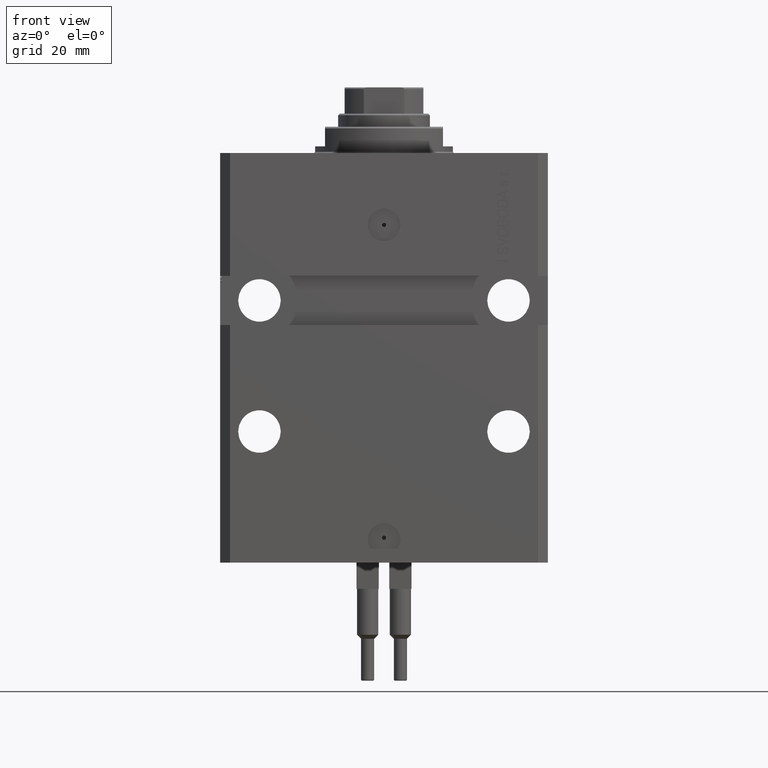
[diagram: clean part render]
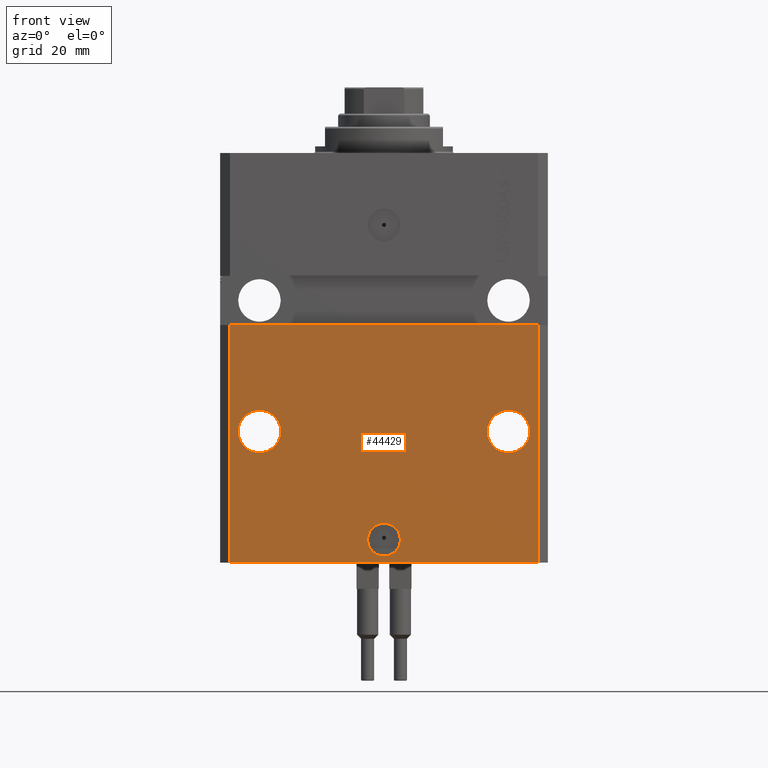
[diagram: same view with one face highlighted and labeled with its STEP entity id]
A machine part, front view. The second image highlights one B-rep face of the part: STEP entity #44429.
In plain terms, the highlighted planar face has unit normal (-0, -1, 0).
Its self-contained STEP definition (entity closure, byte-faithful):
#963 = DIRECTION ( 'NONE',  ( 1.176083712526788232E-16, -1.000000000000000000, 0.000000000000000000 ) ) ;
#1636 = CARTESIAN_POINT ( 'NONE',  ( -44.50000000000002842, -37.50000000000000711, -84.99999999999998579 ) ) ;
#2238 = CARTESIAN_POINT ( 'NONE',  ( 38.00000000000001421, -37.49999999999999289, -84.99999999999998579 ) ) ;
#3449 = CIRCLE ( 'NONE', #20900, 5.000000000000006217 ) ;
#4096 = VERTEX_POINT ( 'NONE', #22849 ) ;
#4556 = EDGE_CURVE ( 'NONE', #11833, #5690, #3449, .T. ) ;
#4684 = CARTESIAN_POINT ( 'NONE',  ( 38.00000000000001421, -37.49999999999999289, -84.99999999999998579 ) ) ;
#4815 = CIRCLE ( 'NONE', #32529, 6.499999999999999112 ) ;
#5073 = CARTESIAN_POINT ( 'NONE',  ( 44.50000000000001421, -37.49999999999999289, -84.99999999999998579 ) ) ;
#5690 = VERTEX_POINT ( 'NONE', #43741 ) ;
#6437 = AXIS2_PLACEMENT_3D ( 'NONE', #32333, #47429, #19178 ) ;
#6475 = FACE_OUTER_BOUND ( 'NONE', #47271, .T. ) ;
#6717 = DIRECTION ( 'NONE',  ( 1.000000000000000000, -1.476360405086644309E-16, 0.000000000000000000 ) ) ;
#7027 = EDGE_LOOP ( 'NONE', ( #22681, #30252 ) ) ;
#7936 = EDGE_LOOP ( 'NONE', ( #15169, #39681 ) ) ;
#8541 = AXIS2_PLACEMENT_3D ( 'NONE', #13769, #13513, #39311 ) ;
#8672 = VECTOR ( 'NONE', #40323, 1000.000000000000000 ) ;
#10142 = DIRECTION ( 'NONE',  ( 1.000000000000000000, 0.000000000000000000, 0.000000000000000000 ) ) ;
#10362 = EDGE_CURVE ( 'NONE', #31226, #43845, #15521, .T. ) ;
#10462 = VECTOR ( 'NONE', #36800, 1000.000000000000000 ) ;
#11000 = DIRECTION ( 'NONE',  ( -1.000000000000000000, 0.000000000000000000, 0.000000000000000000 ) ) ;
#11548 = VERTEX_POINT ( 'NONE', #1636 ) ;
#11833 = VERTEX_POINT ( 'NONE', #16462 ) ;
#13513 = DIRECTION ( 'NONE',  ( 1.176083712526788232E-16, -1.000000000000000000, 0.000000000000000000 ) ) ;
#13769 = CARTESIAN_POINT ( 'NONE',  ( -5.536351519074916863E-15, -37.50000000000000000, -118.0000000000000000 ) ) ;
#14230 = LINE ( 'NONE', #21444, #10462 ) ;
#14391 = FACE_BOUND ( 'NONE', #7936, .T. ) ;
#15169 = ORIENTED_EDGE ( 'NONE', *, *, #4556, .F. ) ;
#15521 = CIRCLE ( 'NONE', #21099, 6.499999999999999112 ) ;
#15708 = EDGE_CURVE ( 'NONE', #33654, #4096, #16332, .T. ) ;
#16332 = LINE ( 'NONE', #31447, #33388 ) ;
#16391 = CARTESIAN_POINT ( 'NONE',  ( -47.00000000000000000, -37.49999999999999289, -125.0000000000000000 ) ) ;
#16462 = CARTESIAN_POINT ( 'NONE',  ( 5.000000000000000888, -37.50000000000000000, -118.0000000000000000 ) ) ;
#16482 = CIRCLE ( 'NONE', #8541, 5.000000000000006217 ) ;
#16760 = EDGE_CURVE ( 'NONE', #4096, #38073, #14230, .T. ) ;
#18038 = LINE ( 'NONE', #29432, #8672 ) ;
#18527 = DIRECTION ( 'NONE',  ( 1.000000000000000000, -1.476360405086644309E-16, 0.000000000000000000 ) ) ;
#19178 = DIRECTION ( 'NONE',  ( -1.000000000000000000, 0.000000000000000000, 0.000000000000000000 ) ) ;
#20729 = VECTOR ( 'NONE', #31507, 1000.000000000000000 ) ;
#20900 = AXIS2_PLACEMENT_3D ( 'NONE', #41539, #26196, #33624 ) ;
#21099 = AXIS2_PLACEMENT_3D ( 'NONE', #4684, #963, #27501 ) ;
#21444 = CARTESIAN_POINT ( 'NONE',  ( 47.00000000000000000, -37.50000000000000711, -125.0000000000000000 ) ) ;
#21941 = CARTESIAN_POINT ( 'NONE',  ( -38.00000000000002842, -37.50000000000000711, -84.99999999999998579 ) ) ;
#22681 = ORIENTED_EDGE ( 'NONE', *, *, #47418, .F. ) ;
#22849 = CARTESIAN_POINT ( 'NONE',  ( 47.00000000000000000, -37.50000000000000711, -125.0000000000000000 ) ) ;
#23494 = VERTEX_POINT ( 'NONE', #39517 ) ;
#23576 = EDGE_LOOP ( 'NONE', ( #41122, #27917 ) ) ;
#23854 = CARTESIAN_POINT ( 'NONE',  ( 47.00000000000000000, -37.49999999999999289, -52.49999999999998579 ) ) ;
#26196 = DIRECTION ( 'NONE',  ( 1.176083712526788232E-16, -1.000000000000000000, 0.000000000000000000 ) ) ;
#27501 = DIRECTION ( 'NONE',  ( 1.000000000000000000, 0.000000000000000000, 0.000000000000000000 ) ) ;
#27917 = ORIENTED_EDGE ( 'NONE', *, *, #10362, .F. ) ;
#29291 = ORIENTED_EDGE ( 'NONE', *, *, #15708, .T. ) ;
#29375 = CIRCLE ( 'NONE', #34923, 6.499999999999999112 ) ;
#29432 = CARTESIAN_POINT ( 'NONE',  ( -50.00000000000001421, -37.50000000000000711, -52.50000000000000000 ) ) ;
#29486 = DIRECTION ( 'NONE',  ( 1.176083712526788232E-16, -1.000000000000000000, 0.000000000000000000 ) ) ;
#29528 = FACE_BOUND ( 'NONE', #23576, .T. ) ;
#30252 = ORIENTED_EDGE ( 'NONE', *, *, #48141, .F. ) ;
#31226 = VERTEX_POINT ( 'NONE', #44191 ) ;
#31447 = CARTESIAN_POINT ( 'NONE',  ( -47.00000000000000000, -37.49999999999999289, -125.0000000000000000 ) ) ;
#31507 = DIRECTION ( 'NONE',  ( 0.000000000000000000, 0.000000000000000000, 1.000000000000000000 ) ) ;
#32293 = ORIENTED_EDGE ( 'NONE', *, *, #40026, .F. ) ;
#32333 = CARTESIAN_POINT ( 'NONE',  ( -38.00000000000002842, -37.50000000000000711, -84.99999999999998579 ) ) ;
#32529 = AXIS2_PLACEMENT_3D ( 'NONE', #21941, #37042, #11000 ) ;
#33000 = DIRECTION ( 'NONE',  ( -1.476360405086644309E-16, -1.000000000000000000, 0.000000000000000000 ) ) ;
#33388 = VECTOR ( 'NONE', #18527, 1000.000000000000000 ) ;
#33624 = DIRECTION ( 'NONE',  ( 1.000000000000000000, 0.000000000000000000, 0.000000000000000000 ) ) ;
#33654 = VERTEX_POINT ( 'NONE', #42831 ) ;
#33736 = CARTESIAN_POINT ( 'NONE',  ( -31.50000000000002842, -37.50000000000000711, -84.99999999999998579 ) ) ;
#34923 = AXIS2_PLACEMENT_3D ( 'NONE', #2238, #29486, #10142 ) ;
#35227 = LINE ( 'NONE', #16391, #20729 ) ;
#36583 = EDGE_CURVE ( 'NONE', #5690, #11833, #16482, .T. ) ;
#36728 = CARTESIAN_POINT ( 'NONE',  ( -47.00000000000000000, -37.49999999999999289, -125.0000000000000000 ) ) ;
#36800 = DIRECTION ( 'NONE',  ( 0.000000000000000000, 0.000000000000000000, 1.000000000000000000 ) ) ;
#37042 = DIRECTION ( 'NONE',  ( 1.176083712526788232E-16, -1.000000000000000000, 0.000000000000000000 ) ) ;
#38073 = VERTEX_POINT ( 'NONE', #23854 ) ;
#39311 = DIRECTION ( 'NONE',  ( 1.000000000000000000, 0.000000000000000000, 0.000000000000000000 ) ) ;
#39517 = CARTESIAN_POINT ( 'NONE',  ( -46.99999999999998579, -37.50000000000000711, -52.50000000000000000 ) ) ;
#39681 = ORIENTED_EDGE ( 'NONE', *, *, #36583, .F. ) ;
#40026 = EDGE_CURVE ( 'NONE', #23494, #38073, #18038, .T. ) ;
#40323 = DIRECTION ( 'NONE',  ( 1.000000000000000000, 1.387778780781445676E-16, 1.387778780781445676E-16 ) ) ;
#40434 = AXIS2_PLACEMENT_3D ( 'NONE', #36728, #33000, #6717 ) ;
#41122 = ORIENTED_EDGE ( 'NONE', *, *, #47118, .F. ) ;
#41144 = FACE_BOUND ( 'NONE', #7027, .T. ) ;
#41283 = CIRCLE ( 'NONE', #6437, 6.499999999999999112 ) ;
#41539 = CARTESIAN_POINT ( 'NONE',  ( -5.536351519074916863E-15, -37.50000000000000000, -118.0000000000000000 ) ) ;
#41617 = ORIENTED_EDGE ( 'NONE', *, *, #48052, .F. ) ;
#42831 = CARTESIAN_POINT ( 'NONE',  ( -47.00000000000000000, -37.49999999999999289, -125.0000000000000000 ) ) ;
#43741 = CARTESIAN_POINT ( 'NONE',  ( -5.000000000000011546, -37.50000000000000000, -118.0000000000000000 ) ) ;
#43845 = VERTEX_POINT ( 'NONE', #5073 ) ;
#44191 = CARTESIAN_POINT ( 'NONE',  ( 31.50000000000001421, -37.49999999999999289, -84.99999999999998579 ) ) ;
#44414 = VERTEX_POINT ( 'NONE', #33736 ) ;
#44429 = ADVANCED_FACE ( 'NONE', ( #14391, #29528, #41144, #6475 ), #44625, .T. ) ;
#44625 = PLANE ( 'NONE',  #40434 ) ;
#47118 = EDGE_CURVE ( 'NONE', #43845, #31226, #29375, .T. ) ;
#47271 = EDGE_LOOP ( 'NONE', ( #32293, #41617, #29291, #48825 ) ) ;
#47418 = EDGE_CURVE ( 'NONE', #44414, #11548, #4815, .T. ) ;
#47429 = DIRECTION ( 'NONE',  ( 1.176083712526788232E-16, -1.000000000000000000, 0.000000000000000000 ) ) ;
#48052 = EDGE_CURVE ( 'NONE', #33654, #23494, #35227, .T. ) ;
#48141 = EDGE_CURVE ( 'NONE', #11548, #44414, #41283, .T. ) ;
#48825 = ORIENTED_EDGE ( 'NONE', *, *, #16760, .T. ) ;